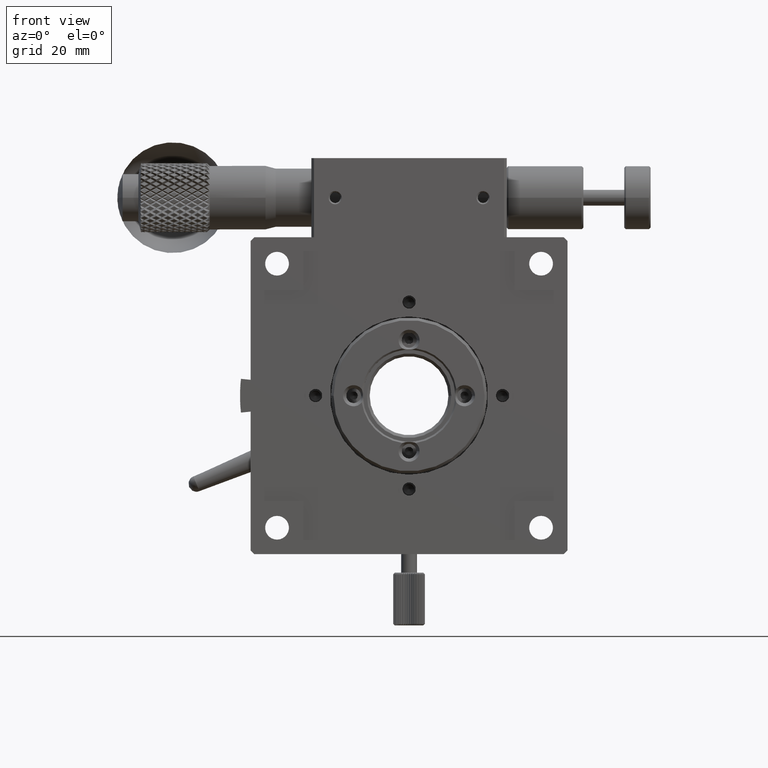
[diagram: clean part render]
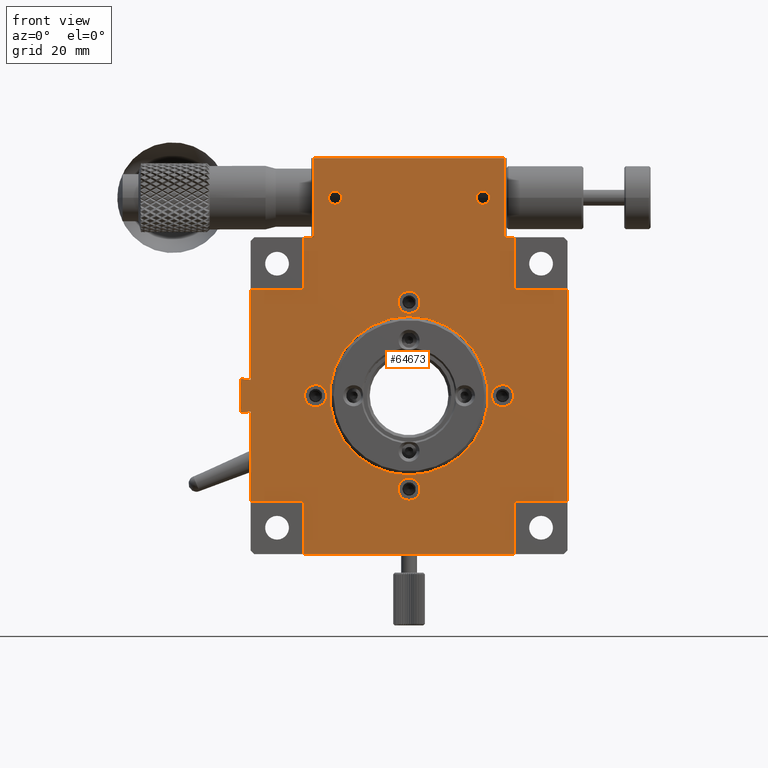
[diagram: same view with one face highlighted and labeled with its STEP entity id]
A machine part, front view. The second image highlights one B-rep face of the part: STEP entity #64673.
In plain terms, the highlighted planar face has unit normal (0, 1, 0).
Its self-contained STEP definition (entity closure, byte-faithful):
#252 = EDGE_CURVE ( 'NONE', #7953, #52436, #29388, .T. ) ;
#439 = VERTEX_POINT ( 'NONE', #68757 ) ;
#448 = CARTESIAN_POINT ( 'NONE',  ( 4.625929269271486900E-15, 0.5000000000000001110, -50.00000000000000711 ) ) ;
#1669 = DIRECTION ( 'NONE',  ( 0.000000000000000000, -1.000000000000000000, 0.000000000000000000 ) ) ;
#1905 = VERTEX_POINT ( 'NONE', #76355 ) ;
#2231 = VERTEX_POINT ( 'NONE', #20563 ) ;
#2343 = LINE ( 'NONE', #30646, #41894 ) ;
#2529 = EDGE_CURVE ( 'NONE', #68761, #3112, #14738, .T. ) ;
#2618 = VECTOR ( 'NONE', #14614, 1000.000000000000000 ) ;
#2639 = ORIENTED_EDGE ( 'NONE', *, *, #75767, .F. ) ;
#2777 = FACE_BOUND ( 'NONE', #75472, .T. ) ;
#2859 = LINE ( 'NONE', #57651, #87914 ) ;
#3112 = VERTEX_POINT ( 'NONE', #26018 ) ;
#3264 = ORIENTED_EDGE ( 'NONE', *, *, #70723, .F. ) ;
#4544 = VERTEX_POINT ( 'NONE', #89951 ) ;
#4905 = VECTOR ( 'NONE', #7127, 1000.000000000000000 ) ;
#4952 = CARTESIAN_POINT ( 'NONE',  ( 12.00000000000000178, 0.5000000000000000000, 0.000000000000000000 ) ) ;
#6058 = DIRECTION ( 'NONE',  ( 0.000000000000000000, -1.000000000000000000, 0.000000000000000000 ) ) ;
#6729 = EDGE_CURVE ( 'NONE', #87656, #87656, #79036, .T. ) ;
#6735 = EDGE_CURVE ( 'NONE', #34788, #79362, #36476, .T. ) ;
#6853 = CARTESIAN_POINT ( 'NONE',  ( 10.00000000000000000, 0.5000000000000000000, -60.00000000000000000 ) ) ;
#7127 = DIRECTION ( 'NONE',  ( -1.000000000000000000, -0.000000000000000000, 0.000000000000000000 ) ) ;
#7325 = LINE ( 'NONE', #14289, #33009 ) ;
#7334 = CARTESIAN_POINT ( 'NONE',  ( 0.000000000000000000, 0.5000000000000000000, -10.00000000000000000 ) ) ;
#7531 = CARTESIAN_POINT ( 'NONE',  ( 44.00000000000000000, 0.5000000000450199877, 6.250000000022737368 ) ) ;
#7953 = VERTEX_POINT ( 'NONE', #83408 ) ;
#8052 = ORIENTED_EDGE ( 'NONE', *, *, #34844, .F. ) ;
#8935 = CARTESIAN_POINT ( 'NONE',  ( -1.840000000000000080, 0.5000000000000000000, -26.80400250312990096 ) ) ;
#9171 = DIRECTION ( 'NONE',  ( -1.000000000000000000, -0.000000000000000000, 0.000000000000000000 ) ) ;
#9182 = EDGE_LOOP ( 'NONE', ( #33722 ) ) ;
#9965 = ORIENTED_EDGE ( 'NONE', *, *, #20873, .F. ) ;
#10368 = EDGE_CURVE ( 'NONE', #55669, #78473, #7325, .T. ) ;
#11123 = CARTESIAN_POINT ( 'NONE',  ( 12.30000000000000071, 0.5000000000000000000, -30.00000000000000000 ) ) ;
#11717 = VECTOR ( 'NONE', #29380, 1000.000000000000114 ) ;
#11740 = EDGE_CURVE ( 'NONE', #84091, #74997, #45045, .T. ) ;
#12088 = EDGE_LOOP ( 'NONE', ( #53199 ) ) ;
#12359 = VERTEX_POINT ( 'NONE', #56153 ) ;
#12436 = CARTESIAN_POINT ( 'NONE',  ( 30.00000000000000000, 0.5000000000000000000, -45.00000000000000000 ) ) ;
#12722 = ORIENTED_EDGE ( 'NONE', *, *, #19607, .F. ) ;
#13210 = ORIENTED_EDGE ( 'NONE', *, *, #252, .F. ) ;
#13228 = CIRCLE ( 'NONE', #65103, 2.099999999999997868 ) ;
#13699 = ORIENTED_EDGE ( 'NONE', *, *, #15411, .F. ) ;
#14088 = LINE ( 'NONE', #8935, #11717 ) ;
#14289 = CARTESIAN_POINT ( 'NONE',  ( 0.000000000000000000, 0.5000000000000000000, 0.000000000000000000 ) ) ;
#14614 = DIRECTION ( 'NONE',  ( 0.000000000000000000, -0.000000000000000000, 1.000000000000000000 ) ) ;
#14670 = DIRECTION ( 'NONE',  ( 0.000000000000000000, 0.000000000000000000, -1.000000000000000000 ) ) ;
#14738 = LINE ( 'NONE', #7334, #69951 ) ;
#15411 = EDGE_CURVE ( 'NONE', #80665, #1905, #51413, .T. ) ;
#15978 = CARTESIAN_POINT ( 'NONE',  ( 12.00000000000000178, 0.5000000000000000000, 15.00000000000000000 ) ) ;
#16206 = VERTEX_POINT ( 'NONE', #89445 ) ;
#16521 = ORIENTED_EDGE ( 'NONE', *, *, #20125, .F. ) ;
#16567 = CARTESIAN_POINT ( 'NONE',  ( 0.000000000000000000, 0.5000000000000000000, -50.00000000000000000 ) ) ;
#17344 = LINE ( 'NONE', #38232, #85449 ) ;
#17751 = EDGE_CURVE ( 'NONE', #12359, #68761, #2343, .T. ) ;
#18066 = PLANE ( 'NONE',  #85495 ) ;
#18808 = DIRECTION ( 'NONE',  ( 1.000000000000000000, 0.000000000000000000, -0.000000000000000000 ) ) ;
#19307 = ORIENTED_EDGE ( 'NONE', *, *, #88853, .F. ) ;
#19456 = DIRECTION ( 'NONE',  ( 0.000000000000000000, 0.000000000000000000, -1.000000000000000000 ) ) ;
#19607 = EDGE_CURVE ( 'NONE', #75089, #75089, #78050, .T. ) ;
#19609 = LINE ( 'NONE', #27504, #74147 ) ;
#20125 = EDGE_CURVE ( 'NONE', #89018, #89018, #42510, .T. ) ;
#20173 = VECTOR ( 'NONE', #48767, 1000.000000000000000 ) ;
#20252 = VERTEX_POINT ( 'NONE', #15978 ) ;
#20563 = CARTESIAN_POINT ( 'NONE',  ( 50.00000000000000711, 0.5000000000000001110, -60.00000000000000000 ) ) ;
#20773 = EDGE_CURVE ( 'NONE', #78473, #20252, #57893, .T. ) ;
#20873 = EDGE_CURVE ( 'NONE', #52436, #16206, #47611, .T. ) ;
#21094 = ORIENTED_EDGE ( 'NONE', *, *, #10368, .F. ) ;
#21151 = ORIENTED_EDGE ( 'NONE', *, *, #61618, .F. ) ;
#21176 = DIRECTION ( 'NONE',  ( -0.000000000000000000, 0.000000000000000000, -1.000000000000000000 ) ) ;
#21749 = EDGE_CURVE ( 'NONE', #24513, #24513, #75162, .T. ) ;
#23019 = VERTEX_POINT ( 'NONE', #57124 ) ;
#23488 = ORIENTED_EDGE ( 'NONE', *, *, #71540, .F. ) ;
#24067 = CARTESIAN_POINT ( 'NONE',  ( 16.00000000000000000, 0.5000000000450199877, 6.250000000022737368 ) ) ;
#24137 = EDGE_CURVE ( 'NONE', #4544, #4544, #34760, .T. ) ;
#24513 = VERTEX_POINT ( 'NONE', #53291 ) ;
#24727 = AXIS2_PLACEMENT_3D ( 'NONE', #37893, #45315, #73612 ) ;
#25108 = AXIS2_PLACEMENT_3D ( 'NONE', #32532, #60824, #80813 ) ;
#25673 = DIRECTION ( 'NONE',  ( 1.000000000000000000, 0.000000000000000000, -0.000000000000000000 ) ) ;
#26018 = CARTESIAN_POINT ( 'NONE',  ( 60.00000000000000000, 0.5000000000000001110, -10.00000000000000000 ) ) ;
#26105 = DIRECTION ( 'NONE',  ( 0.000000000000000000, 0.000000000000000000, -1.000000000000000000 ) ) ;
#26706 = LINE ( 'NONE', #69393, #2618 ) ;
#27394 = CARTESIAN_POINT ( 'NONE',  ( -1.840000000000001412, 0.4999999999999986122, -33.19599749687010615 ) ) ;
#27504 = CARTESIAN_POINT ( 'NONE',  ( 3.561697419146510032E-15, 0.5000000000000000000, -33.01130417418669794 ) ) ;
#28184 = EDGE_CURVE ( 'NONE', #74997, #439, #14088, .T. ) ;
#28680 = DIRECTION ( 'NONE',  ( 1.000000000000000000, 0.000000000000000000, -0.000000000000000000 ) ) ;
#28776 = DIRECTION ( 'NONE',  ( 0.000000000000000000, 0.000000000000000000, -1.000000000000000000 ) ) ;
#29038 = DIRECTION ( 'NONE',  ( -1.000000000000000000, -0.000000000000000000, 0.000000000000000000 ) ) ;
#29380 = DIRECTION ( 'NONE',  ( 0.9950000000000027711, 0.000000000000000000, -0.09987492177716317254 ) ) ;
#29388 = LINE ( 'NONE', #69777, #4905 ) ;
#29654 = CIRCLE ( 'NONE', #25108, 1.249999999977262410 ) ;
#30343 = VECTOR ( 'NONE', #9171, 1000.000000000000000 ) ;
#30646 = CARTESIAN_POINT ( 'NONE',  ( 50.00000000000000000, 0.5000000000000000000, 0.000000000000000000 ) ) ;
#31074 = FACE_BOUND ( 'NONE', #12088, .T. ) ;
#31983 = DIRECTION ( 'NONE',  ( 0.000000000000000000, 1.000000000000000000, 0.000000000000000000 ) ) ;
#32339 = CARTESIAN_POINT ( 'NONE',  ( 10.00000000000000000, 0.5000000000000000000, 0.000000000000000000 ) ) ;
#32532 = CARTESIAN_POINT ( 'NONE',  ( 44.00000000000000000, 0.5000000000450199877, 7.500000000000000000 ) ) ;
#32788 = ORIENTED_EDGE ( 'NONE', *, *, #28184, .F. ) ;
#33009 = VECTOR ( 'NONE', #77853, 1000.000000000000000 ) ;
#33342 = CARTESIAN_POINT ( 'NONE',  ( 30.00000000000000000, 0.5000000000000000000, -14.40000000000000036 ) ) ;
#33416 = DIRECTION ( 'NONE',  ( 0.000000000000000000, -1.000000000000000000, 0.000000000000000000 ) ) ;
#33722 = ORIENTED_EDGE ( 'NONE', *, *, #21749, .F. ) ;
#34078 = CARTESIAN_POINT ( 'NONE',  ( 60.00000000000000000, 0.5000000000000000000, 0.000000000000000000 ) ) ;
#34760 = CIRCLE ( 'NONE', #85160, 2.099999999999997868 ) ;
#34788 = VERTEX_POINT ( 'NONE', #78744 ) ;
#34844 = EDGE_CURVE ( 'NONE', #79362, #12359, #60123, .T. ) ;
#34888 = CARTESIAN_POINT ( 'NONE',  ( -1.840000000000003189, 0.5000000000000004441, -26.80400250312991162 ) ) ;
#35029 = ORIENTED_EDGE ( 'NONE', *, *, #11740, .F. ) ;
#35102 = CARTESIAN_POINT ( 'NONE',  ( 0.000000000000000000, 0.5000000000000000000, -60.00000000000000000 ) ) ;
#35165 = AXIS2_PLACEMENT_3D ( 'NONE', #11123, #33416, #19456 ) ;
#35255 = DIRECTION ( 'NONE',  ( 0.000000000000000000, 0.000000000000000000, -1.000000000000000000 ) ) ;
#36277 = ORIENTED_EDGE ( 'NONE', *, *, #6735, .F. ) ;
#36476 = LINE ( 'NONE', #50385, #62766 ) ;
#36686 = ORIENTED_EDGE ( 'NONE', *, *, #20773, .F. ) ;
#36741 = VECTOR ( 'NONE', #25673, 1000.000000000000000 ) ;
#37808 = EDGE_LOOP ( 'NONE', ( #2639 ) ) ;
#37893 = CARTESIAN_POINT ( 'NONE',  ( 30.00000000000000000, 0.5000000000000000000, -30.00000000000000000 ) ) ;
#37912 = ORIENTED_EDGE ( 'NONE', *, *, #69606, .F. ) ;
#38232 = CARTESIAN_POINT ( 'NONE',  ( 0.000000000000000000, 0.5000000000000000000, -10.00000000000000000 ) ) ;
#38940 = FACE_BOUND ( 'NONE', #37808, .T. ) ;
#39000 = AXIS2_PLACEMENT_3D ( 'NONE', #56918, #1669, #14670 ) ;
#39656 = VERTEX_POINT ( 'NONE', #6853 ) ;
#40072 = LINE ( 'NONE', #82281, #36741 ) ;
#40964 = CARTESIAN_POINT ( 'NONE',  ( 30.00000000000000000, 0.5000000000000000000, -12.30000000000000071 ) ) ;
#41152 = DIRECTION ( 'NONE',  ( 0.000000000000000000, -0.000000000000000000, 1.000000000000000000 ) ) ;
#41894 = VECTOR ( 'NONE', #45017, 1000.000000000000000 ) ;
#41965 = LINE ( 'NONE', #34078, #85708 ) ;
#42206 = CARTESIAN_POINT ( 'NONE',  ( 47.70000000000000284, 0.5000000000000000000, -30.00000000000000000 ) ) ;
#42263 = EDGE_CURVE ( 'NONE', #83430, #83430, #13228, .T. ) ;
#42510 = CIRCLE ( 'NONE', #24727, 15.00000000000000000 ) ;
#43962 = CARTESIAN_POINT ( 'NONE',  ( 12.00000000000000000, 0.5000000000000000000, 0.000000000000000000 ) ) ;
#44018 = EDGE_CURVE ( 'NONE', #3112, #80665, #41965, .T. ) ;
#44531 = CARTESIAN_POINT ( 'NONE',  ( 60.00000000000000000, 0.5000000000000000000, -50.00000000000000711 ) ) ;
#45017 = DIRECTION ( 'NONE',  ( -0.000000000000000000, 0.000000000000000000, -1.000000000000000000 ) ) ;
#45045 = CIRCLE ( 'NONE', #65791, 32.00000000000000000 ) ;
#45315 = DIRECTION ( 'NONE',  ( 0.000000000000000000, -1.000000000000000000, 0.000000000000000000 ) ) ;
#47611 = LINE ( 'NONE', #48079, #79581 ) ;
#48079 = CARTESIAN_POINT ( 'NONE',  ( 6.938893903907229955E-15, 0.5000000000000000000, 0.000000000000000000 ) ) ;
#48158 = CARTESIAN_POINT ( 'NONE',  ( 30.00000000000000000, 0.5000000000000000000, -49.80000000000000426 ) ) ;
#48767 = DIRECTION ( 'NONE',  ( 0.000000000000000000, -0.000000000000000000, 1.000000000000000000 ) ) ;
#50385 = CARTESIAN_POINT ( 'NONE',  ( 48.00000000000000000, 0.5000000000000000000, 0.000000000000000000 ) ) ;
#51413 = LINE ( 'NONE', #16567, #30343 ) ;
#52436 = VERTEX_POINT ( 'NONE', #448 ) ;
#53025 = EDGE_CURVE ( 'NONE', #63276, #23019, #17344, .T. ) ;
#53146 = ORIENTED_EDGE ( 'NONE', *, *, #42263, .F. ) ;
#53199 = ORIENTED_EDGE ( 'NONE', *, *, #6729, .F. ) ;
#53291 = CARTESIAN_POINT ( 'NONE',  ( 12.30000000000000071, 0.5000000000000000000, -32.09999999999999432 ) ) ;
#53416 = EDGE_CURVE ( 'NONE', #39656, #7953, #76144, .T. ) ;
#54183 = ORIENTED_EDGE ( 'NONE', *, *, #24137, .F. ) ;
#54543 = ORIENTED_EDGE ( 'NONE', *, *, #44018, .F. ) ;
#55669 = VERTEX_POINT ( 'NONE', #55974 ) ;
#55974 = CARTESIAN_POINT ( 'NONE',  ( 10.00000000000000000, 0.5000000000000001110, 0.000000000000000000 ) ) ;
#56153 = CARTESIAN_POINT ( 'NONE',  ( 50.00000000000000711, 0.5000000000000000000, 0.000000000000000000 ) ) ;
#56734 = VERTEX_POINT ( 'NONE', #7531 ) ;
#56918 = CARTESIAN_POINT ( 'NONE',  ( 16.00000000000000000, 0.5000000000450199877, 7.500000000000000000 ) ) ;
#57124 = CARTESIAN_POINT ( 'NONE',  ( 10.00000000000000000, 0.5000000000000000000, -10.00000000000000000 ) ) ;
#57651 = CARTESIAN_POINT ( 'NONE',  ( 50.00000000000000000, 0.5000000000000000000, 0.000000000000000000 ) ) ;
#57893 = LINE ( 'NONE', #43962, #64749 ) ;
#58937 = FACE_BOUND ( 'NONE', #83829, .T. ) ;
#59484 = VECTOR ( 'NONE', #29038, 1000.000000000000000 ) ;
#59512 = ORIENTED_EDGE ( 'NONE', *, *, #17751, .F. ) ;
#60123 = LINE ( 'NONE', #61057, #76857 ) ;
#60490 = DIRECTION ( 'NONE',  ( 1.000000000000000000, 0.000000000000000000, -0.000000000000000000 ) ) ;
#60824 = DIRECTION ( 'NONE',  ( 0.000000000000000000, -1.000000000000000000, 0.000000000000000000 ) ) ;
#61057 = CARTESIAN_POINT ( 'NONE',  ( 0.000000000000000000, 0.5000000000000000000, 0.000000000000000000 ) ) ;
#61618 = EDGE_CURVE ( 'NONE', #1905, #2231, #2859, .T. ) ;
#62766 = VECTOR ( 'NONE', #21176, 1000.000000000000000 ) ;
#63276 = VERTEX_POINT ( 'NONE', #81523 ) ;
#64489 = DIRECTION ( 'NONE',  ( 0.000000000000000000, 0.000000000000000000, 1.000000000000000000 ) ) ;
#64673 = ADVANCED_FACE ( 'NONE', ( #58937, #89066, #2777, #65887, #81626, #74687, #31074, #38940 ), #18066, .F. ) ;
#64749 = VECTOR ( 'NONE', #66220, 1000.000000000000000 ) ;
#65103 = AXIS2_PLACEMENT_3D ( 'NONE', #78410, #6058, #28776 ) ;
#65791 = AXIS2_PLACEMENT_3D ( 'NONE', #70069, #71874, #64489 ) ;
#65887 = FACE_BOUND ( 'NONE', #9182, .T. ) ;
#66220 = DIRECTION ( 'NONE',  ( 0.000000000000000000, -0.000000000000000000, 1.000000000000000000 ) ) ;
#67604 = LINE ( 'NONE', #32339, #72285 ) ;
#67722 = DIRECTION ( 'NONE',  ( 0.000000000000000000, -0.000000000000000000, 1.000000000000000000 ) ) ;
#68757 = CARTESIAN_POINT ( 'NONE',  ( 1.983212112717090330E-15, 0.5000000000000001110, -26.98869582581329851 ) ) ;
#68761 = VERTEX_POINT ( 'NONE', #71751 ) ;
#69246 = DIRECTION ( 'NONE',  ( 0.000000000000000000, -1.000000000000000000, 0.000000000000000000 ) ) ;
#69388 = ORIENTED_EDGE ( 'NONE', *, *, #53025, .F. ) ;
#69393 = CARTESIAN_POINT ( 'NONE',  ( 3.026782342613410018E-15, 0.5000000000000000000, 0.000000000000000000 ) ) ;
#69606 = EDGE_CURVE ( 'NONE', #439, #63276, #26706, .T. ) ;
#69777 = CARTESIAN_POINT ( 'NONE',  ( 0.000000000000000000, 0.5000000000000000000, -50.00000000000000000 ) ) ;
#69951 = VECTOR ( 'NONE', #28680, 1000.000000000000000 ) ;
#70069 = CARTESIAN_POINT ( 'NONE',  ( 30.00000000000000000, 0.5000000000000004441, -30.00000000000000000 ) ) ;
#70115 = EDGE_LOOP ( 'NONE', ( #32788, #35029, #83289, #9965, #13210, #78032, #19307, #21151, #13699, #54543, #81531, #59512, #8052, #36277, #23488, #36686, #21094, #3264, #69388, #37912 ) ) ;
#70242 = DIRECTION ( 'NONE',  ( -0.000000000000000000, 0.000000000000000000, -1.000000000000000000 ) ) ;
#70331 = DIRECTION ( 'NONE',  ( 0.000000000000000000, -0.000000000000000000, 1.000000000000000000 ) ) ;
#70723 = EDGE_CURVE ( 'NONE', #23019, #55669, #67604, .T. ) ;
#71238 = EDGE_LOOP ( 'NONE', ( #16521 ) ) ;
#71540 = EDGE_CURVE ( 'NONE', #20252, #34788, #40072, .T. ) ;
#71751 = CARTESIAN_POINT ( 'NONE',  ( 50.00000000000000711, 0.5000000000000000000, -10.00000000000000000 ) ) ;
#71874 = DIRECTION ( 'NONE',  ( 0.000000000000000000, 1.000000000000000000, 0.000000000000000000 ) ) ;
#72285 = VECTOR ( 'NONE', #41152, 1000.000000000000000 ) ;
#73612 = DIRECTION ( 'NONE',  ( 0.000000000000000000, 0.000000000000000000, -1.000000000000000000 ) ) ;
#74147 = VECTOR ( 'NONE', #90192, 1000.000000000000227 ) ;
#74687 = FACE_OUTER_BOUND ( 'NONE', #70115, .T. ) ;
#74769 = DIRECTION ( 'NONE',  ( -0.000000000000000000, 0.000000000000000000, -1.000000000000000000 ) ) ;
#74997 = VERTEX_POINT ( 'NONE', #34888 ) ;
#75089 = VERTEX_POINT ( 'NONE', #33342 ) ;
#75162 = CIRCLE ( 'NONE', #35165, 2.099999999999997868 ) ;
#75472 = EDGE_LOOP ( 'NONE', ( #53146 ) ) ;
#75688 = CARTESIAN_POINT ( 'NONE',  ( 10.00000000000000000, 0.5000000000000000000, 0.000000000000000000 ) ) ;
#75767 = EDGE_CURVE ( 'NONE', #56734, #56734, #29654, .T. ) ;
#76144 = LINE ( 'NONE', #75688, #20173 ) ;
#76355 = CARTESIAN_POINT ( 'NONE',  ( 50.00000000000000711, 0.5000000000000000000, -50.00000000000000711 ) ) ;
#76857 = VECTOR ( 'NONE', #18808, 1000.000000000000000 ) ;
#77853 = DIRECTION ( 'NONE',  ( 1.000000000000000000, 0.000000000000000000, -0.000000000000000000 ) ) ;
#78032 = ORIENTED_EDGE ( 'NONE', *, *, #53416, .F. ) ;
#78050 = CIRCLE ( 'NONE', #91417, 2.099999999999999645 ) ;
#78410 = CARTESIAN_POINT ( 'NONE',  ( 30.00000000000000000, 0.5000000000000000000, -47.70000000000000284 ) ) ;
#78473 = VERTEX_POINT ( 'NONE', #4952 ) ;
#78744 = CARTESIAN_POINT ( 'NONE',  ( 48.00000000000000711, 0.5000000000000000000, 15.00000000000000000 ) ) ;
#79036 = CIRCLE ( 'NONE', #39000, 1.249999999977262410 ) ;
#79362 = VERTEX_POINT ( 'NONE', #80474 ) ;
#79581 = VECTOR ( 'NONE', #70331, 1000.000000000000000 ) ;
#80474 = CARTESIAN_POINT ( 'NONE',  ( 48.00000000000000711, 0.5000000000000001110, 0.000000000000000000 ) ) ;
#80665 = VERTEX_POINT ( 'NONE', #44531 ) ;
#80813 = DIRECTION ( 'NONE',  ( 0.000000000000000000, 0.000000000000000000, -1.000000000000000000 ) ) ;
#81523 = CARTESIAN_POINT ( 'NONE',  ( 1.513391171306705009E-15, 0.5000000000000001110, -10.00000000000000178 ) ) ;
#81531 = ORIENTED_EDGE ( 'NONE', *, *, #2529, .F. ) ;
#81626 = FACE_BOUND ( 'NONE', #71238, .T. ) ;
#82281 = CARTESIAN_POINT ( 'NONE',  ( 0.000000000000000000, 0.5000000000000000000, 15.00000000000000000 ) ) ;
#83289 = ORIENTED_EDGE ( 'NONE', *, *, #83800, .F. ) ;
#83408 = CARTESIAN_POINT ( 'NONE',  ( 10.00000000000000000, 0.5000000000000000000, -50.00000000000000711 ) ) ;
#83430 = VERTEX_POINT ( 'NONE', #48158 ) ;
#83800 = EDGE_CURVE ( 'NONE', #16206, #84091, #19609, .T. ) ;
#83829 = EDGE_LOOP ( 'NONE', ( #54183 ) ) ;
#83980 = DIRECTION ( 'NONE',  ( 0.000000000000000000, -1.000000000000000000, 0.000000000000000000 ) ) ;
#84091 = VERTEX_POINT ( 'NONE', #27394 ) ;
#84285 = LINE ( 'NONE', #35102, #59484 ) ;
#85160 = AXIS2_PLACEMENT_3D ( 'NONE', #42206, #83980, #35255 ) ;
#85449 = VECTOR ( 'NONE', #60490, 1000.000000000000000 ) ;
#85495 = AXIS2_PLACEMENT_3D ( 'NONE', #87695, #31983, #67722 ) ;
#85659 = EDGE_LOOP ( 'NONE', ( #12722 ) ) ;
#85708 = VECTOR ( 'NONE', #70242, 1000.000000000000000 ) ;
#87656 = VERTEX_POINT ( 'NONE', #24067 ) ;
#87695 = CARTESIAN_POINT ( 'NONE',  ( 0.000000000000000000, 0.5000000000000000000, 0.000000000000000000 ) ) ;
#87914 = VECTOR ( 'NONE', #74769, 1000.000000000000000 ) ;
#88853 = EDGE_CURVE ( 'NONE', #2231, #39656, #84285, .T. ) ;
#89018 = VERTEX_POINT ( 'NONE', #12436 ) ;
#89066 = FACE_BOUND ( 'NONE', #85659, .T. ) ;
#89445 = CARTESIAN_POINT ( 'NONE',  ( 3.448291498868304480E-15, 0.5000000000000000000, -33.01130417418667662 ) ) ;
#89951 = CARTESIAN_POINT ( 'NONE',  ( 47.70000000000000284, 0.5000000000000000000, -32.09999999999999432 ) ) ;
#90192 = DIRECTION ( 'NONE',  ( -0.9950000000000025491, 0.000000000000000000, -0.09987492177716500441 ) ) ;
#91417 = AXIS2_PLACEMENT_3D ( 'NONE', #40964, #69246, #26105 ) ;